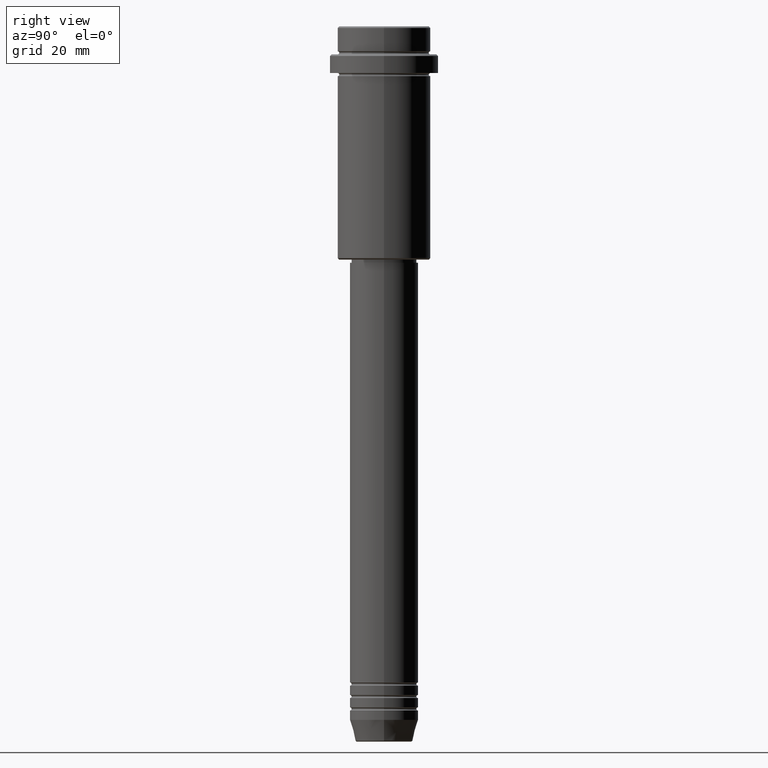
[diagram: clean part render]
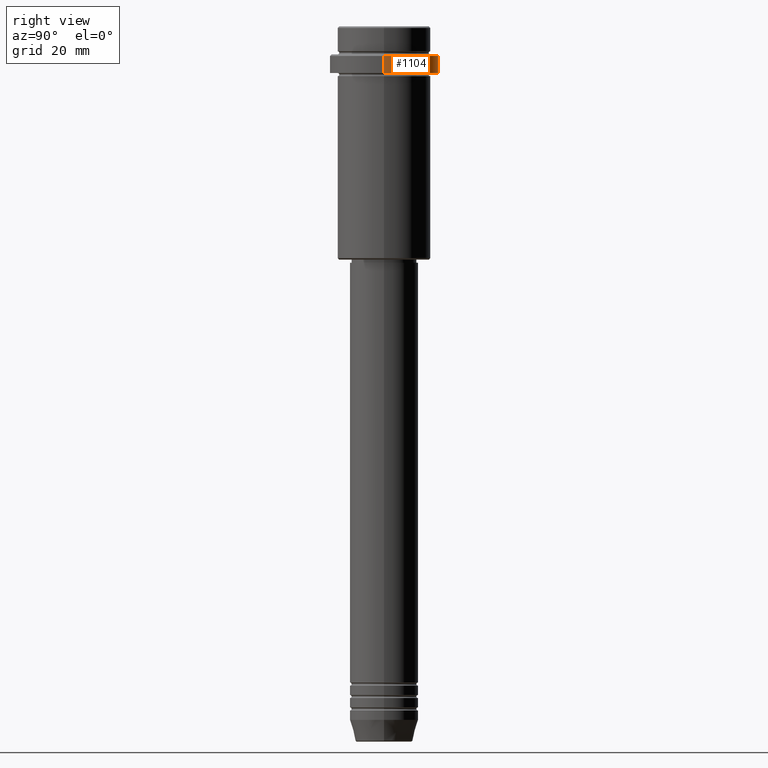
[diagram: same view with one face highlighted and labeled with its STEP entity id]
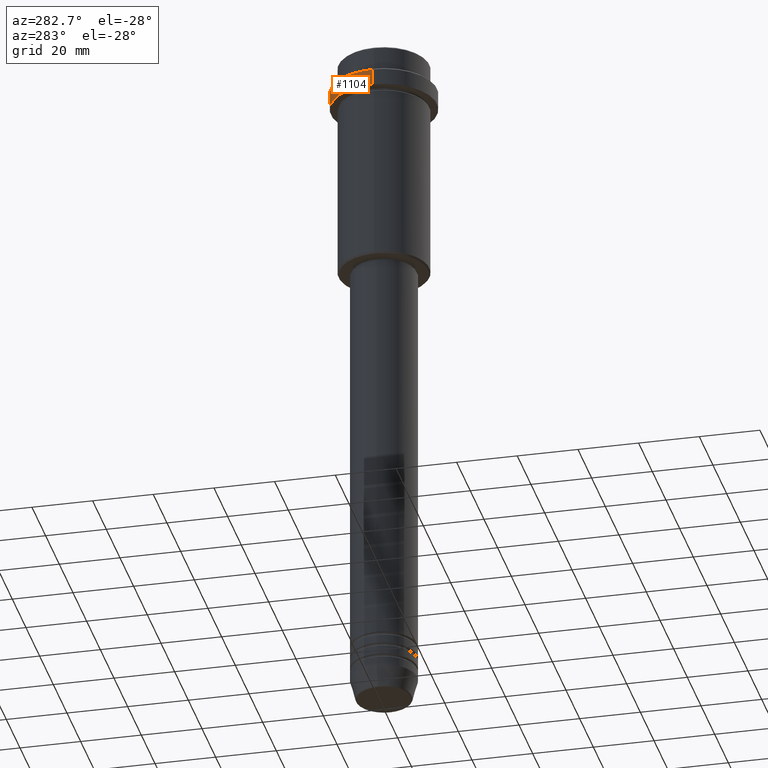
[diagram: same view with one face highlighted and labeled with its STEP entity id]
A machine part, right view. The second image highlights one B-rep face of the part: STEP entity #1104.
A second angle (auxiliary view) of the same face is appended — the face is thin or edge-on in the first view.
In plain terms, the highlighted cylindrical surface (partial cylindrical patch) has radius 17.5 mm, axis along (-0, -0, 1).
Its self-contained STEP definition (entity closure, byte-faithful):
#19 = CIRCLE ( 'NONE', #1416, 17.50000000000000000 ) ;
#45 = CARTESIAN_POINT ( 'NONE',  ( 17.50000000000000000, 0.000000000000000000, -9.499999999999971578 ) ) ;
#94 = VERTEX_POINT ( 'NONE', #412 ) ;
#114 = AXIS2_PLACEMENT_3D ( 'NONE', #121, #913, #1013 ) ;
#121 = CARTESIAN_POINT ( 'NONE',  ( 0.000000000000000000, 0.000000000000000000, 0.000000000000000000 ) ) ;
#200 = LINE ( 'NONE', #1318, #1063 ) ;
#201 = DIRECTION ( 'NONE',  ( 1.000000000000000000, 0.000000000000000000, 0.000000000000000000 ) ) ;
#219 = EDGE_CURVE ( 'NONE', #94, #1145, #1229, .T. ) ;
#247 = CARTESIAN_POINT ( 'NONE',  ( 17.50000000000000000, 0.000000000000000000, 0.000000000000000000 ) ) ;
#272 = DIRECTION ( 'NONE',  ( 0.000000000000000000, 0.000000000000000000, -1.000000000000000000 ) ) ;
#295 = CARTESIAN_POINT ( 'NONE',  ( -17.50000000000000000, 2.143131898507868248E-15, -9.499999999999971578 ) ) ;
#412 = CARTESIAN_POINT ( 'NONE',  ( 17.50000000000000000, 0.000000000000000000, -15.00000000000000000 ) ) ;
#579 = EDGE_CURVE ( 'NONE', #1122, #766, #200, .T. ) ;
#608 = FACE_OUTER_BOUND ( 'NONE', #712, .T. ) ;
#712 = EDGE_LOOP ( 'NONE', ( #936, #964, #1287, #1241 ) ) ;
#722 = AXIS2_PLACEMENT_3D ( 'NONE', #762, #1192, #201 ) ;
#762 = CARTESIAN_POINT ( 'NONE',  ( 0.000000000000000000, 0.000000000000000000, -15.00000000000000000 ) ) ;
#766 = VERTEX_POINT ( 'NONE', #295 ) ;
#913 = DIRECTION ( 'NONE',  ( -0.000000000000000000, -0.000000000000000000, 1.000000000000000000 ) ) ;
#936 = ORIENTED_EDGE ( 'NONE', *, *, #1405, .T. ) ;
#964 = ORIENTED_EDGE ( 'NONE', *, *, #579, .T. ) ;
#1013 = DIRECTION ( 'NONE',  ( 1.000000000000000000, 0.000000000000000000, 0.000000000000000000 ) ) ;
#1039 = CYLINDRICAL_SURFACE ( 'NONE', #114, 17.50000000000000000 ) ;
#1051 = CARTESIAN_POINT ( 'NONE',  ( 0.000000000000000000, 0.000000000000000000, -9.499999999999971578 ) ) ;
#1063 = VECTOR ( 'NONE', #1098, 1000.000000000000000 ) ;
#1098 = DIRECTION ( 'NONE',  ( -0.000000000000000000, -0.000000000000000000, 1.000000000000000000 ) ) ;
#1104 = ADVANCED_FACE ( 'NONE', ( #608 ), #1039, .T. ) ;
#1122 = VERTEX_POINT ( 'NONE', #1124 ) ;
#1124 = CARTESIAN_POINT ( 'NONE',  ( -17.50000000000000000, 2.143131898507868248E-15, -15.00000000000000000 ) ) ;
#1145 = VERTEX_POINT ( 'NONE', #45 ) ;
#1172 = VECTOR ( 'NONE', #1248, 1000.000000000000000 ) ;
#1192 = DIRECTION ( 'NONE',  ( -0.000000000000000000, -0.000000000000000000, 1.000000000000000000 ) ) ;
#1229 = LINE ( 'NONE', #247, #1172 ) ;
#1235 = EDGE_CURVE ( 'NONE', #766, #1145, #19, .T. ) ;
#1241 = ORIENTED_EDGE ( 'NONE', *, *, #219, .F. ) ;
#1248 = DIRECTION ( 'NONE',  ( -0.000000000000000000, -0.000000000000000000, 1.000000000000000000 ) ) ;
#1287 = ORIENTED_EDGE ( 'NONE', *, *, #1235, .T. ) ;
#1318 = CARTESIAN_POINT ( 'NONE',  ( -17.50000000000000000, 2.143131898507868248E-15, 0.000000000000000000 ) ) ;
#1328 = CIRCLE ( 'NONE', #722, 17.50000000000000000 ) ;
#1363 = DIRECTION ( 'NONE',  ( 1.000000000000000000, 0.000000000000000000, 0.000000000000000000 ) ) ;
#1405 = EDGE_CURVE ( 'NONE', #94, #1122, #1328, .T. ) ;
#1416 = AXIS2_PLACEMENT_3D ( 'NONE', #1051, #272, #1363 ) ;